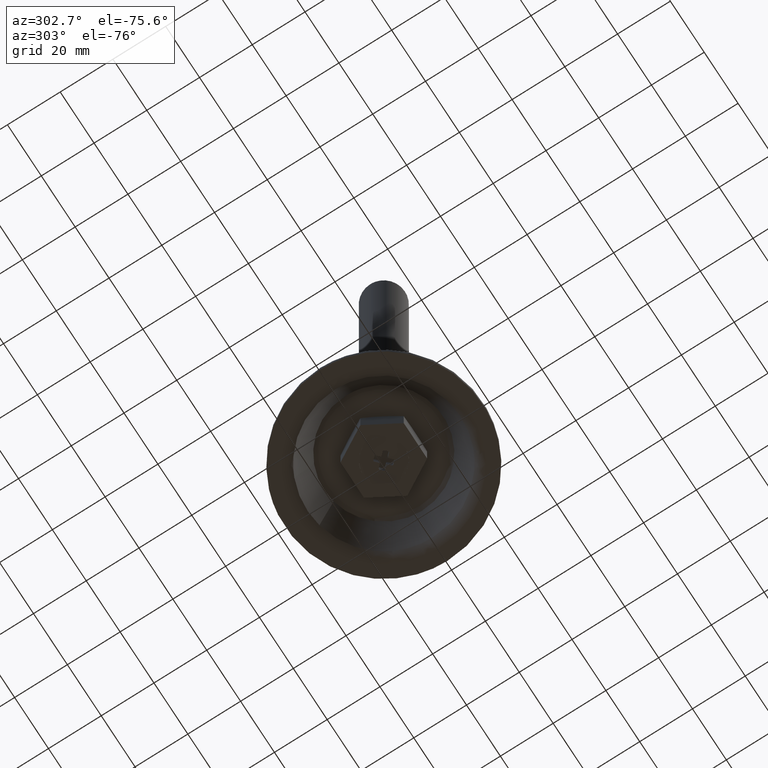
[diagram: clean part render]
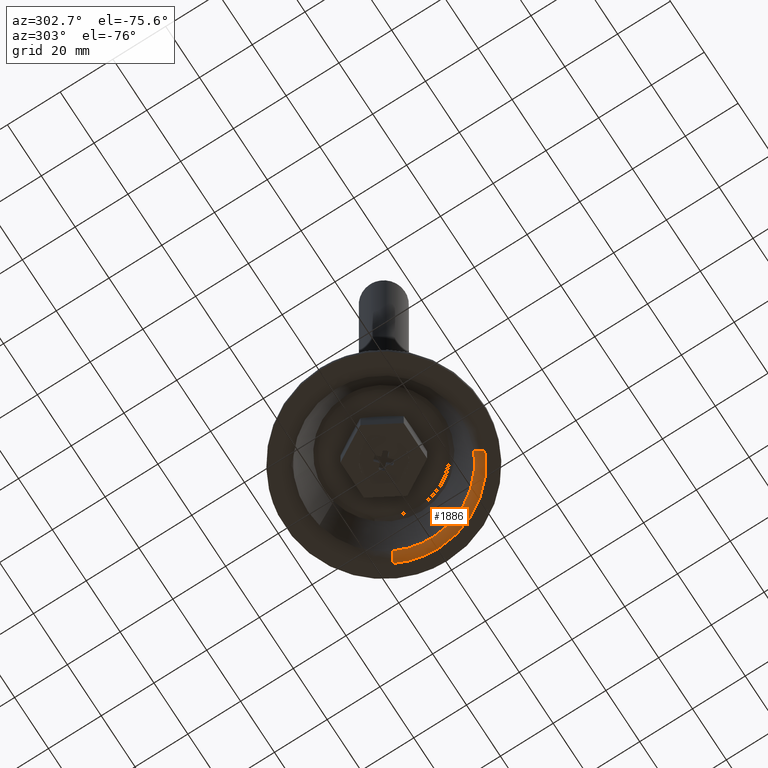
[diagram: same view with one face highlighted and labeled with its STEP entity id]
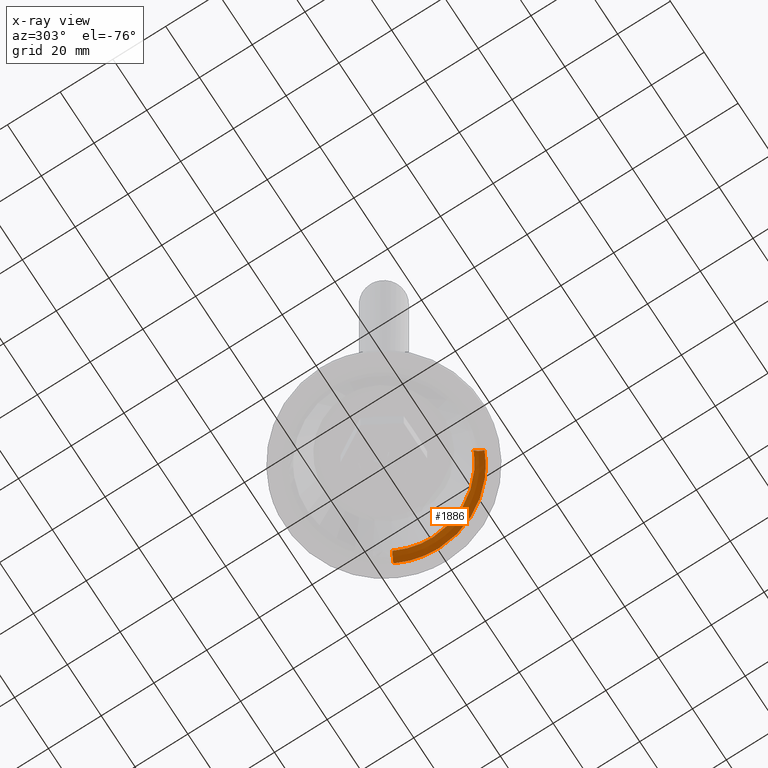
[diagram: x-ray of the same camera — body ghosted, the highlighted face saturated]
A machine part, auxiliary view. The second image highlights one B-rep face of the part: STEP entity #1886.
The next image is the same camera in x-ray: the body ghosted, the highlighted face saturated — about 0% of this face is hidden behind the body in this view.
In plain terms, the highlighted face is a freeform B-spline surface patch.
Its self-contained STEP definition (entity closure, byte-faithful):
#943=CARTESIAN_POINT('',(25.704757551503381,13.301322008251370,2.237050465762298));
#944=VERTEX_POINT('',#943);
#958=CARTESIAN_POINT('',(28.942351802662198,0.0,2.237050468566515));
#959=VERTEX_POINT('',#958);
#960=CARTESIAN_POINT('',(25.704757551503381,13.301322008251374,2.237050465762299));
#961=CARTESIAN_POINT('',(28.942351802662195,7.044682610779137,2.237050468566515));
#962=CARTESIAN_POINT('',(28.942351802662198,0.0,2.237050468566515));
#970=(BOUNDED_CURVE()B_SPLINE_CURVE(2,(#960,#961,#962),.UNSPECIFIED.,.F.,.U.)B_SPLINE_CURVE_WITH_KNOTS((3,3),(0.421825371002069,0.500000000000000),.UNSPECIFIED.)CURVE()GEOMETRIC_REPRESENTATION_ITEM()RATIONAL_B_SPLINE_CURVE((0.874103860135266,0.908412725132994,1.0))REPRESENTATION_ITEM(''));
#971=EDGE_CURVE('',#944,#959,#970,.T.);
#973=CARTESIAN_POINT('',(11.809436057822570,-26.423416658508341,2.237050467022852));
#974=VERTEX_POINT('',#973);
#975=CARTESIAN_POINT('',(28.942351802662198,0.0,2.237050468566515));
#976=CARTESIAN_POINT('',(28.942351802662195,-18.766190660427704,2.237050468566515));
#977=CARTESIAN_POINT('',(11.809436057822563,-26.423416658508337,2.237050467022852));
#985=(BOUNDED_CURVE()B_SPLINE_CURVE(2,(#975,#976,#977),.UNSPECIFIED.,.F.,.U.)B_SPLINE_CURVE_WITH_KNOTS((3,3),(0.500000000000000,0.680709483577435),.UNSPECIFIED.)CURVE()GEOMETRIC_REPRESENTATION_ITEM()RATIONAL_B_SPLINE_CURVE((1.0,0.788285670739554,0.882641638331893))REPRESENTATION_ITEM(''));
#986=EDGE_CURVE('',#959,#974,#985,.T.);
#1761=CARTESIAN_POINT('',(13.274496827823000,-29.701465750547019,6.899816E-016));
#1762=VERTEX_POINT('',#1761);
#1763=CARTESIAN_POINT('',(13.274496827823000,-29.701465750547012,6.899816E-016));
#1764=CARTESIAN_POINT('',(12.257614231870811,-27.426207864937776,5.997941E-009));
#1765=CARTESIAN_POINT('',(11.809436057822561,-26.423416658508344,2.237050467022852));
#1773=(BOUNDED_CURVE()B_SPLINE_CURVE(2,(#1763,#1764,#1765),.UNSPECIFIED.,.F.,.U.)B_SPLINE_CURVE_WITH_KNOTS((3,3),(-1.645059917515753,-0.344443061543457),.UNSPECIFIED.)CURVE()GEOMETRIC_REPRESENTATION_ITEM()RATIONAL_B_SPLINE_CURVE((0.884983932884314,0.752043508656921,0.887147264350276))REPRESENTATION_ITEM(''));
#1774=EDGE_CURVE('',#1762,#974,#1773,.T.);
#1793=CARTESIAN_POINT('',(28.893650885810590,14.951463893527560,6.131464E-016));
#1794=VERTEX_POINT('',#1793);
#1810=CARTESIAN_POINT('',(28.893650885810590,14.951463893527563,6.131464E-016));
#1811=CARTESIAN_POINT('',(26.680275035427719,13.806118528864792,1.039938E-010));
#1812=CARTESIAN_POINT('',(25.704757551503381,13.301322008251361,2.237050465762299));
#1820=(BOUNDED_CURVE()B_SPLINE_CURVE(2,(#1810,#1811,#1812),.UNSPECIFIED.,.F.,.U.)B_SPLINE_CURVE_WITH_KNOTS((3,3),(-1.645059920420626,-0.344443062408002),.UNSPECIFIED.)CURVE()GEOMETRIC_REPRESENTATION_ITEM()RATIONAL_B_SPLINE_CURVE((0.905349035021869,0.769349407268796,0.907562147916705))REPRESENTATION_ITEM(''));
#1821=EDGE_CURVE('',#1794,#944,#1820,.T.);
#1829=CARTESIAN_POINT('',(29.080025578656187,15.047906343852683,0.005508376817269));
#1830=CARTESIAN_POINT('',(44.127931922508871,-14.032119234803504,0.005508376817269));
#1831=CARTESIAN_POINT('',(15.047906343852693,-29.080025578656187,0.005508376817269));
#1832=CARTESIAN_POINT('',(14.215649308527503,-29.510689777616797,0.005508376817269));
#1833=CARTESIAN_POINT('',(13.360123874166637,-29.893050414027389,0.005508376817270));
#1834=CARTESIAN_POINT('',(26.602574532094561,13.765911208762374,-0.141036661942069));
#1835=CARTESIAN_POINT('',(40.368485740856933,-12.836663323332191,-0.141036661942070));
#1836=CARTESIAN_POINT('',(13.765911208762374,-26.602574532094561,-0.141036661942069));
#1837=CARTESIAN_POINT('',(13.004557689584290,-26.996548616476499,-0.141036661942070));
#1838=CARTESIAN_POINT('',(12.221918105237028,-27.346334324220773,-0.141036661942069));
#1839=CARTESIAN_POINT('',(25.627193375815878,13.261185232867309,2.427354654061546));
#1840=CARTESIAN_POINT('',(38.888378608683176,-12.366008142948559,2.427354654061544));
#1841=CARTESIAN_POINT('',(13.261185232867309,-25.627193375815878,2.427354654061546));
#1842=CARTESIAN_POINT('',(12.527746676392448,-26.006722433551811,2.427354654061544));
#1843=CARTESIAN_POINT('',(11.773802506536319,-26.343683277760501,2.427354654061546));
#1851=(BOUNDED_SURFACE()B_SPLINE_SURFACE(2,2,((#1829,#1834,#1839),(#1830,#1835,#1840),(#1831,#1836,#1841),(#1832,#1837,#1842),(#1833,#1838,#1843)),.UNSPECIFIED.,.F.,.F.,.U.)B_SPLINE_SURFACE_WITH_KNOTS((3,2,3),(3,3),(0.0,54.249956771517247,56.419952972906323),(0.0,5.033720049422497),.UNSPECIFIED.)GEOMETRIC_REPRESENTATION_ITEM()RATIONAL_B_SPLINE_SURFACE(((0.919619709422543,0.754968243184607,0.922053800016161),(0.650269332645483,0.533843164336330,0.651990494610252),(0.919619709422543,0.754968243184607,0.922053800016161),(0.908845704626362,0.746123248465928,0.911251278102022),(0.898933619391884,0.737985852649924,0.901312957116847)))REPRESENTATION_ITEM('')SURFACE());
#1852=ORIENTED_EDGE('',*,*,#986,.F.);
#1853=ORIENTED_EDGE('',*,*,#971,.F.);
#1854=ORIENTED_EDGE('',*,*,#1821,.F.);
#1855=CARTESIAN_POINT('',(32.532896183340213,0.0,0.0));
#1856=VERTEX_POINT('',#1855);
#1857=CARTESIAN_POINT('',(28.893650885810590,14.951463893527562,6.131464E-016));
#1858=CARTESIAN_POINT('',(32.532896183340206,7.918635278174629,0.0));
#1859=CARTESIAN_POINT('',(32.532896183340213,0.0,0.0));
#1867=(BOUNDED_CURVE()B_SPLINE_CURVE(2,(#1857,#1858,#1859),.UNSPECIFIED.,.F.,.U.)B_SPLINE_CURVE_WITH_KNOTS((3,3),(0.421825371003047,0.500000000000000),.UNSPECIFIED.)CURVE()GEOMETRIC_REPRESENTATION_ITEM()RATIONAL_B_SPLINE_CURVE((0.874103860136124,0.908412725134140,1.0))REPRESENTATION_ITEM(''));
#1868=EDGE_CURVE('',#1794,#1856,#1867,.T.);
#1869=ORIENTED_EDGE('',*,*,#1868,.T.);
#1870=CARTESIAN_POINT('',(32.532896183340213,0.0,0.0));
#1871=CARTESIAN_POINT('',(32.532896183340206,-21.094295883848318,0.0));
#1872=CARTESIAN_POINT('',(13.274496827822997,-29.701465750547019,6.899816E-016));
#1880=(BOUNDED_CURVE()B_SPLINE_CURVE(2,(#1870,#1871,#1872),.UNSPECIFIED.,.F.,.U.)B_SPLINE_CURVE_WITH_KNOTS((3,3),(0.500000000000000,0.680709483574477),.UNSPECIFIED.)CURVE()GEOMETRIC_REPRESENTATION_ITEM()RATIONAL_B_SPLINE_CURVE((1.0,0.788285670743019,0.882641638328805))REPRESENTATION_ITEM(''));
#1881=EDGE_CURVE('',#1856,#1762,#1880,.T.);
#1882=ORIENTED_EDGE('',*,*,#1881,.T.);
#1883=ORIENTED_EDGE('',*,*,#1774,.T.);
#1884=EDGE_LOOP('',(#1852,#1853,#1854,#1869,#1882,#1883));
#1885=FACE_OUTER_BOUND('',#1884,.T.);
#1886=ADVANCED_FACE('',(#1885),#1851,.T.);